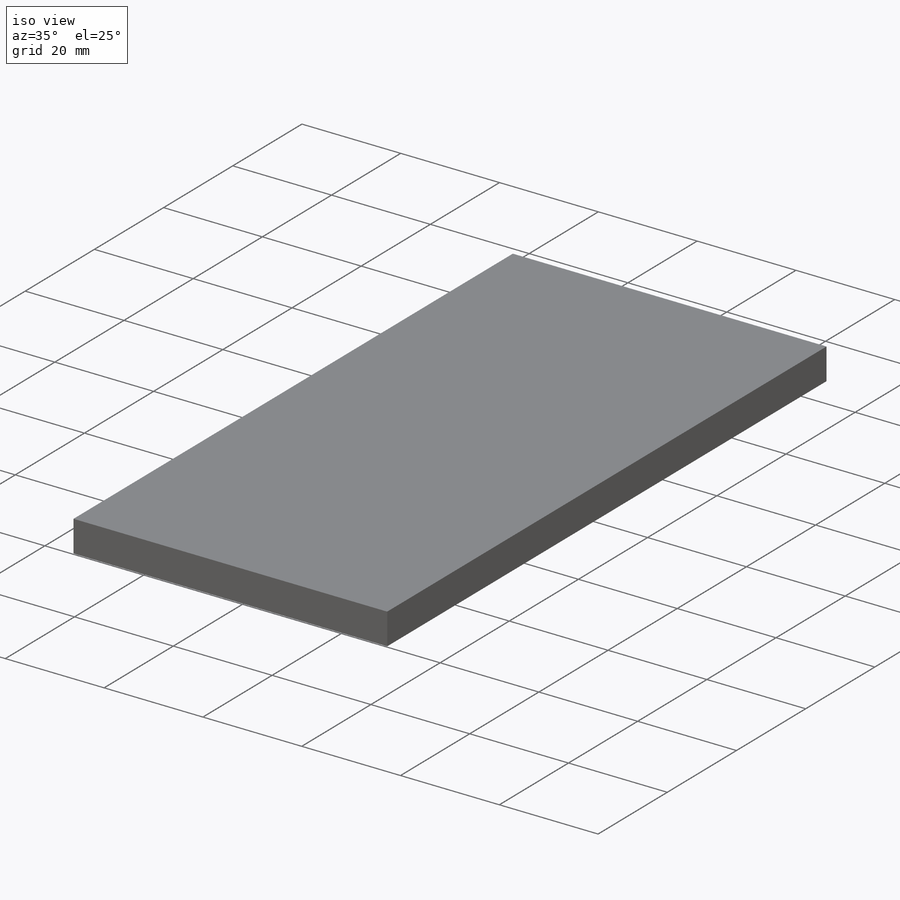
[diagram: iso view]
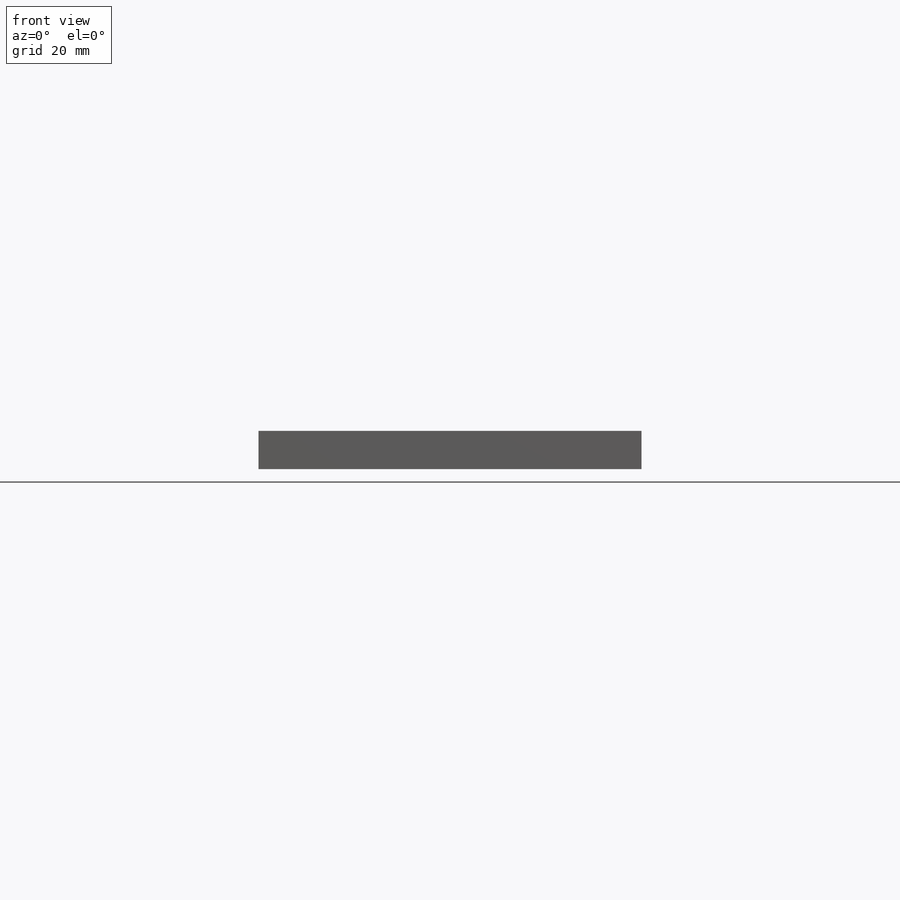
[diagram: front view]
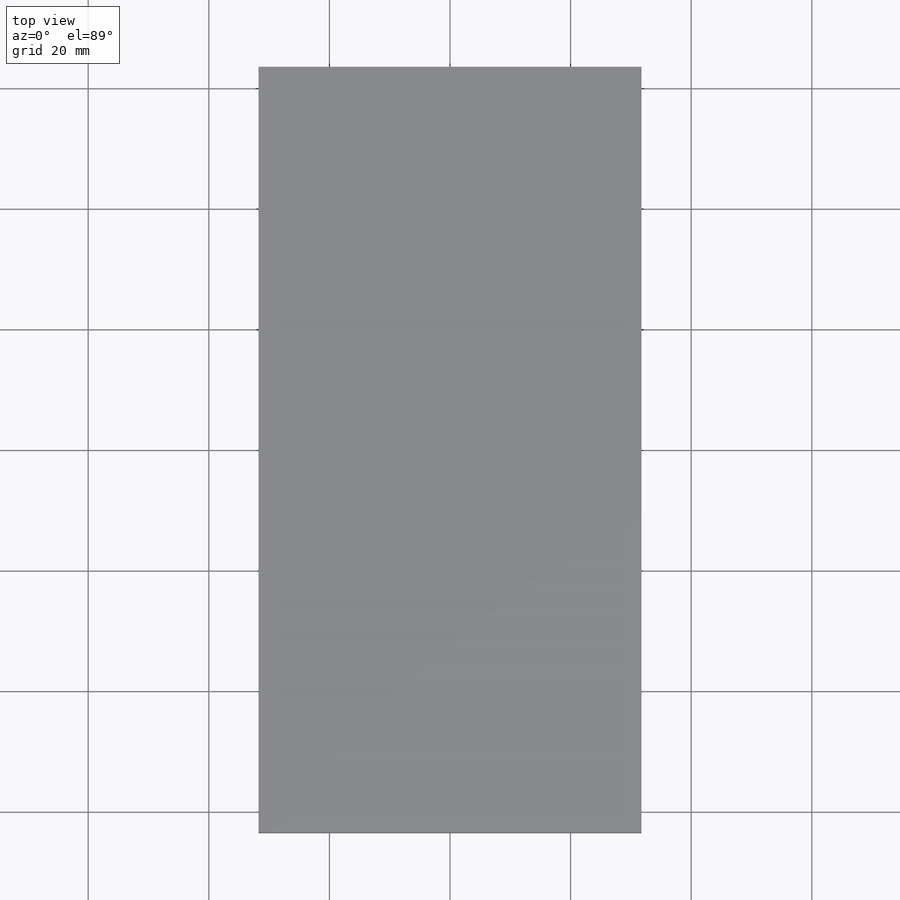
[diagram: top view]
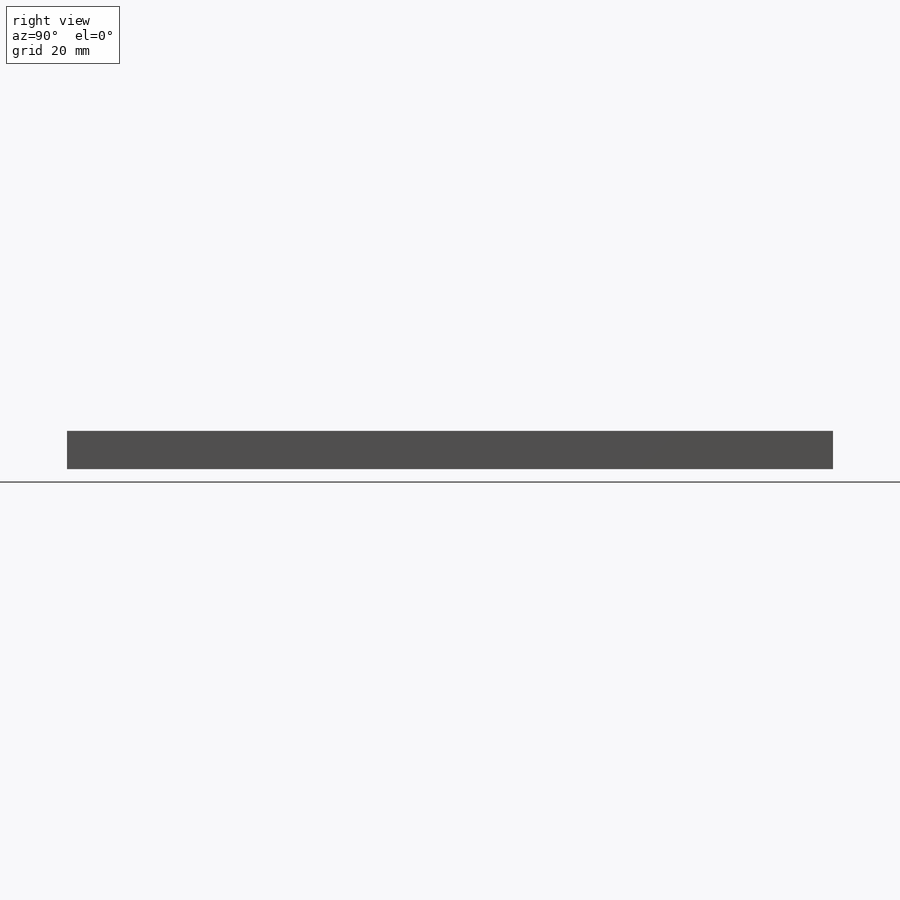
[diagram: right view]
SOLIDWORKS PART (.sldprt)
format: sldprt  version: not decoded by parser v0  size: 148,480 bytes
history: native  units: mm
features: sketch x3, material x1, extrude x1, hole x1, thread x1 (+16 scaffold rows collapsed)
feature tree (23):
  scaffold x16  (default folders/planes/origin — collapsed)
  material  "Material <not specified>"
  sketch  "Sketch1"  dims[c1.D1=63.5mm c1.D2=127.0mm c1.D3=~29.760511mm c2.D3=60.0deg c2.D4=59.0296mm c3.D3=59.0296mm c3.D4=~51.382134mm c4.D4=60.0deg]
  extrude  "Boss-Extrude1"  Depth=6.35mm
  hole  "#2-56 Tapped Hole1"  Diameter=1.778mm Depth=5.588mm
  sketch  "Sketch3"
  sketch  "Sketch2"  dims[hole-wizard template sketch: 47 standard entries collapsed; hole parameters kept: c15.Tap Drill Depth=5.588mm c15.D3=~14.816244mm c15.Drill Angle=118.0deg]
  thread  "Hole Thread1"  Diameter=4.318mm  [1 undecoded]
decode coverage: 5 of 6 modeling features carry decoded parameters
note: ~ marks probable driven/reference dimensions
note: 1 parameter value undecoded
note: suppression state not decoded; provenance and decode notes live in map.json
